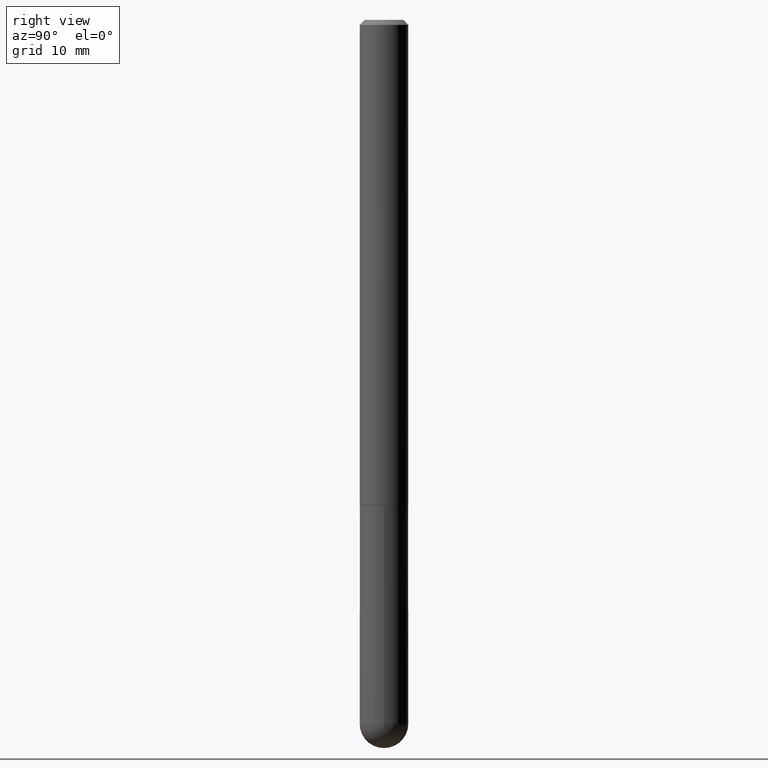
[diagram: clean part render]
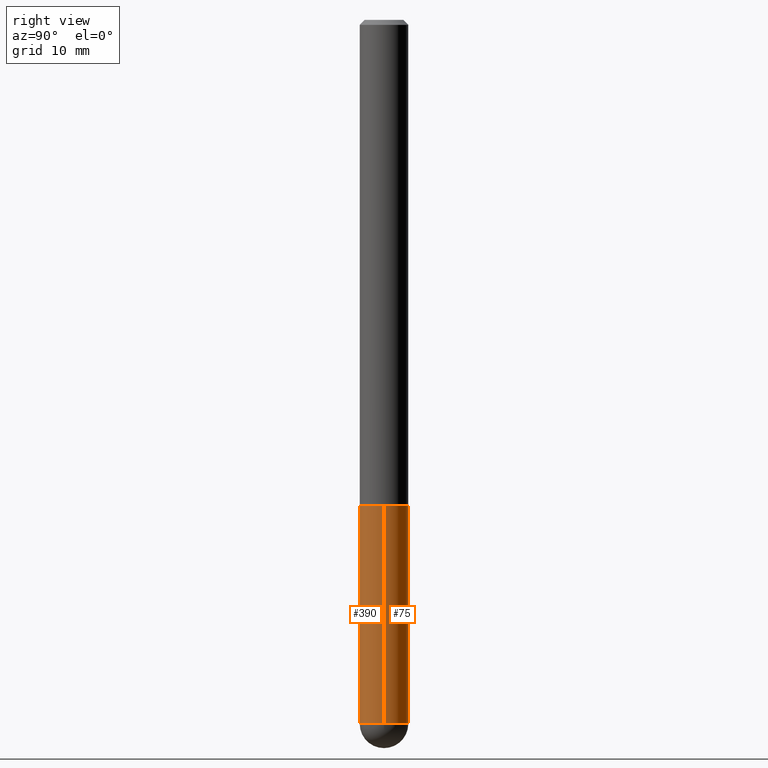
[diagram: same view with one multi-face feature highlighted, each face labeled with its STEP entity id]
A machine part, right view. The highlighted faces form ONE feature: a constant-radius fillet chain: 2 tangent blend faces with common blend radius 2.5006 mm. The faces share edges in the B-rep.
Their STEP definitions:
[1] entity #75 (Cylinder):
#7 = ORIENTED_EDGE ( 'NONE', *, *, #412, .T. ) ;
#12 = LINE ( 'NONE', #142, #255 ) ;
#33 = ORIENTED_EDGE ( 'NONE', *, *, #203, .F. ) ;
#45 = AXIS2_PLACEMENT_3D ( 'NONE', #291, #231, #358 ) ;
#51 = CARTESIAN_POINT ( 'NONE',  ( -0.09844999999999999585, -7.719916064164011895E-15, -1.968499999999999694 ) ) ;
#73 = DIRECTION ( 'NONE',  ( -2.445468806185136597E-29, 3.491481338843145583E-15, 1.000000000000000000 ) ) ;
#75 = ADVANCED_FACE ( 'NONE', ( #267 ), #113, .T. ) ;
#81 = CARTESIAN_POINT ( 'NONE',  ( 0.000000000000000000, 0.000000000000000000, 0.000000000000000000 ) ) ;
#89 = ORIENTED_EDGE ( 'NONE', *, *, #322, .F. ) ;
#101 = CIRCLE ( 'NONE', #281, 0.09844999999999999585 ) ;
#111 = CARTESIAN_POINT ( 'NONE',  ( 6.980223886934544207E-29, -9.965909759526929881E-15, -2.854349999999999721 ) ) ;
#113 = CYLINDRICAL_SURFACE ( 'NONE', #184, 0.09844999999999998197 ) ;
#116 = ORIENTED_EDGE ( 'NONE', *, *, #122, .T. ) ;
#122 = EDGE_CURVE ( 'NONE', #234, #206, #344, .T. ) ;
#142 = CARTESIAN_POINT ( 'NONE',  ( 0.09844999999999998197, -6.874726756182128559E-16, 4.800596035771097813E-30 ) ) ;
#150 = DIRECTION ( 'NONE',  ( -2.445468806185136877E-29, 3.491481338843145188E-15, 1.000000000000000000 ) ) ;
#152 = CARTESIAN_POINT ( 'NONE',  ( 4.813905344975440714E-29, -6.872981015512730918E-15, -1.968499999999999694 ) ) ;
#165 = EDGE_CURVE ( 'NONE', #241, #234, #200, .T. ) ;
#171 = DIRECTION ( 'NONE',  ( -2.445468806185136877E-29, 3.491481338843145188E-15, 1.000000000000000000 ) ) ;
#181 = CARTESIAN_POINT ( 'NONE',  ( 0.09844999999999999585, -7.560453691130944267E-15, -1.968499999999999694 ) ) ;
#184 = AXIS2_PLACEMENT_3D ( 'NONE', #81, #238, #207 ) ;
#200 = CIRCLE ( 'NONE', #376, 0.09844999999999998197 ) ;
#202 = DIRECTION ( 'NONE',  ( 1.000000000000000000, -6.982962677686276177E-15, 0.000000000000000000 ) ) ;
#203 = EDGE_CURVE ( 'NONE', #379, #388, #101, .T. ) ;
#206 = VERTEX_POINT ( 'NONE', #216 ) ;
#207 = DIRECTION ( 'NONE',  ( 1.000000000000000000, -6.982962677686266711E-15, 4.876176775795935793E-29 ) ) ;
#209 = LINE ( 'NONE', #243, #406 ) ;
#216 = CARTESIAN_POINT ( 'NONE',  ( -0.09844999999999998197, -7.719916064164013473E-15, -2.854349999999999721 ) ) ;
#225 = ORIENTED_EDGE ( 'NONE', *, *, #165, .T. ) ;
#231 = DIRECTION ( 'NONE',  ( -2.445468806185136597E-29, 3.491481338843145583E-15, 1.000000000000000000 ) ) ;
#234 = VERTEX_POINT ( 'NONE', #336 ) ;
#238 = DIRECTION ( 'NONE',  ( -2.445468806185136597E-29, 3.491481338843145583E-15, 1.000000000000000000 ) ) ;
#241 = VERTEX_POINT ( 'NONE', #274 ) ;
#243 = CARTESIAN_POINT ( 'NONE',  ( -0.09844999999999998197, 6.995293233558185049E-16, -4.842691596355953341E-30 ) ) ;
#255 = VECTOR ( 'NONE', #171, 39.37007874015748143 ) ;
#267 = FACE_OUTER_BOUND ( 'NONE', #402, .T. ) ;
#269 = DIRECTION ( 'NONE',  ( 1.000000000000000000, -6.982962677686265922E-15, 0.000000000000000000 ) ) ;
#274 = CARTESIAN_POINT ( 'NONE',  ( 0.09844999999999998197, -9.106918063138045721E-15, -2.854349999999999721 ) ) ;
#281 = AXIS2_PLACEMENT_3D ( 'NONE', #152, #340, #269 ) ;
#291 = CARTESIAN_POINT ( 'NONE',  ( 6.980223886934544207E-29, -9.965909759526929881E-15, -2.854349999999999721 ) ) ;
#322 = EDGE_CURVE ( 'NONE', #241, #379, #12, .T. ) ;
#336 = CARTESIAN_POINT ( 'NONE',  ( 6.874726756182819798E-16, 0.09844999999998993445, -2.854350000000000165 ) ) ;
#340 = DIRECTION ( 'NONE',  ( -2.445468806185136597E-29, 3.491481338843145583E-15, 1.000000000000000000 ) ) ;
#344 = CIRCLE ( 'NONE', #45, 0.09844999999999998197 ) ;
#358 = DIRECTION ( 'NONE',  ( 1.000000000000000000, -6.982962677686276177E-15, 0.000000000000000000 ) ) ;
#376 = AXIS2_PLACEMENT_3D ( 'NONE', #111, #73, #202 ) ;
#379 = VERTEX_POINT ( 'NONE', #181 ) ;
#388 = VERTEX_POINT ( 'NONE', #51 ) ;
#402 = EDGE_LOOP ( 'NONE', ( #116, #7, #33, #89, #225 ) ) ;
#406 = VECTOR ( 'NONE', #150, 39.37007874015748143 ) ;
#412 = EDGE_CURVE ( 'NONE', #206, #388, #209, .T. ) ;
[2] entity #390 (Cylinder):
#1 = DIRECTION ( 'NONE',  ( 1.000000000000000000, -6.982962677686265922E-15, 0.000000000000000000 ) ) ;
#8 = CIRCLE ( 'NONE', #395, 0.09844999999999998197 ) ;
#12 = LINE ( 'NONE', #142, #255 ) ;
#27 = FACE_OUTER_BOUND ( 'NONE', #179, .T. ) ;
#34 = CARTESIAN_POINT ( 'NONE',  ( 4.813905344975440714E-29, -6.872981015512730918E-15, -1.968499999999999694 ) ) ;
#42 = EDGE_CURVE ( 'NONE', #210, #241, #254, .T. ) ;
#51 = CARTESIAN_POINT ( 'NONE',  ( -0.09844999999999999585, -7.719916064164011895E-15, -1.968499999999999694 ) ) ;
#99 = ORIENTED_EDGE ( 'NONE', *, *, #168, .T. ) ;
#112 = ORIENTED_EDGE ( 'NONE', *, *, #285, .F. ) ;
#118 = DIRECTION ( 'NONE',  ( 1.000000000000000000, -6.982962677686266711E-15, 4.876176775795935793E-29 ) ) ;
#120 = CYLINDRICAL_SURFACE ( 'NONE', #185, 0.09844999999999998197 ) ;
#127 = CARTESIAN_POINT ( 'NONE',  ( 0.000000000000000000, 0.000000000000000000, 0.000000000000000000 ) ) ;
#142 = CARTESIAN_POINT ( 'NONE',  ( 0.09844999999999998197, -6.874726756182128559E-16, 4.800596035771097813E-30 ) ) ;
#147 = AXIS2_PLACEMENT_3D ( 'NONE', #385, #394, #301 ) ;
#150 = DIRECTION ( 'NONE',  ( -2.445468806185136877E-29, 3.491481338843145188E-15, 1.000000000000000000 ) ) ;
#164 = DIRECTION ( 'NONE',  ( -2.445468806185136597E-29, 3.491481338843145583E-15, 1.000000000000000000 ) ) ;
#168 = EDGE_CURVE ( 'NONE', #206, #210, #8, .T. ) ;
#171 = DIRECTION ( 'NONE',  ( -2.445468806185136877E-29, 3.491481338843145188E-15, 1.000000000000000000 ) ) ;
#178 = DIRECTION ( 'NONE',  ( 1.000000000000000000, -6.982962677686276177E-15, 0.000000000000000000 ) ) ;
#179 = EDGE_LOOP ( 'NONE', ( #381, #99, #188, #408, #112 ) ) ;
#181 = CARTESIAN_POINT ( 'NONE',  ( 0.09844999999999999585, -7.560453691130944267E-15, -1.968499999999999694 ) ) ;
#185 = AXIS2_PLACEMENT_3D ( 'NONE', #127, #217, #118 ) ;
#188 = ORIENTED_EDGE ( 'NONE', *, *, #42, .T. ) ;
#206 = VERTEX_POINT ( 'NONE', #216 ) ;
#209 = LINE ( 'NONE', #243, #406 ) ;
#210 = VERTEX_POINT ( 'NONE', #271 ) ;
#216 = CARTESIAN_POINT ( 'NONE',  ( -0.09844999999999998197, -7.719916064164013473E-15, -2.854349999999999721 ) ) ;
#217 = DIRECTION ( 'NONE',  ( -2.445468806185136597E-29, 3.491481338843145583E-15, 1.000000000000000000 ) ) ;
#241 = VERTEX_POINT ( 'NONE', #274 ) ;
#243 = CARTESIAN_POINT ( 'NONE',  ( -0.09844999999999998197, 6.995293233558185049E-16, -4.842691596355953341E-30 ) ) ;
#254 = CIRCLE ( 'NONE', #147, 0.09844999999999998197 ) ;
#255 = VECTOR ( 'NONE', #171, 39.37007874015748143 ) ;
#266 = AXIS2_PLACEMENT_3D ( 'NONE', #34, #164, #1 ) ;
#271 = CARTESIAN_POINT ( 'NONE',  ( -6.995293233557512545E-16, -0.09845000000001033480, -2.854349999999998833 ) ) ;
#274 = CARTESIAN_POINT ( 'NONE',  ( 0.09844999999999998197, -9.106918063138045721E-15, -2.854349999999999721 ) ) ;
#285 = EDGE_CURVE ( 'NONE', #388, #379, #360, .T. ) ;
#295 = CARTESIAN_POINT ( 'NONE',  ( 6.980223886934544207E-29, -9.965909759526929881E-15, -2.854349999999999721 ) ) ;
#301 = DIRECTION ( 'NONE',  ( 1.000000000000000000, -6.982962677686276177E-15, 0.000000000000000000 ) ) ;
#322 = EDGE_CURVE ( 'NONE', #241, #379, #12, .T. ) ;
#330 = DIRECTION ( 'NONE',  ( -2.445468806185136597E-29, 3.491481338843145583E-15, 1.000000000000000000 ) ) ;
#360 = CIRCLE ( 'NONE', #266, 0.09844999999999999585 ) ;
#379 = VERTEX_POINT ( 'NONE', #181 ) ;
#381 = ORIENTED_EDGE ( 'NONE', *, *, #412, .F. ) ;
#385 = CARTESIAN_POINT ( 'NONE',  ( 6.980223886934544207E-29, -9.965909759526929881E-15, -2.854349999999999721 ) ) ;
#388 = VERTEX_POINT ( 'NONE', #51 ) ;
#390 = ADVANCED_FACE ( 'NONE', ( #27 ), #120, .T. ) ;
#394 = DIRECTION ( 'NONE',  ( -2.445468806185136597E-29, 3.491481338843145583E-15, 1.000000000000000000 ) ) ;
#395 = AXIS2_PLACEMENT_3D ( 'NONE', #295, #330, #178 ) ;
#406 = VECTOR ( 'NONE', #150, 39.37007874015748143 ) ;
#408 = ORIENTED_EDGE ( 'NONE', *, *, #322, .T. ) ;
#412 = EDGE_CURVE ( 'NONE', #206, #388, #209, .T. ) ;